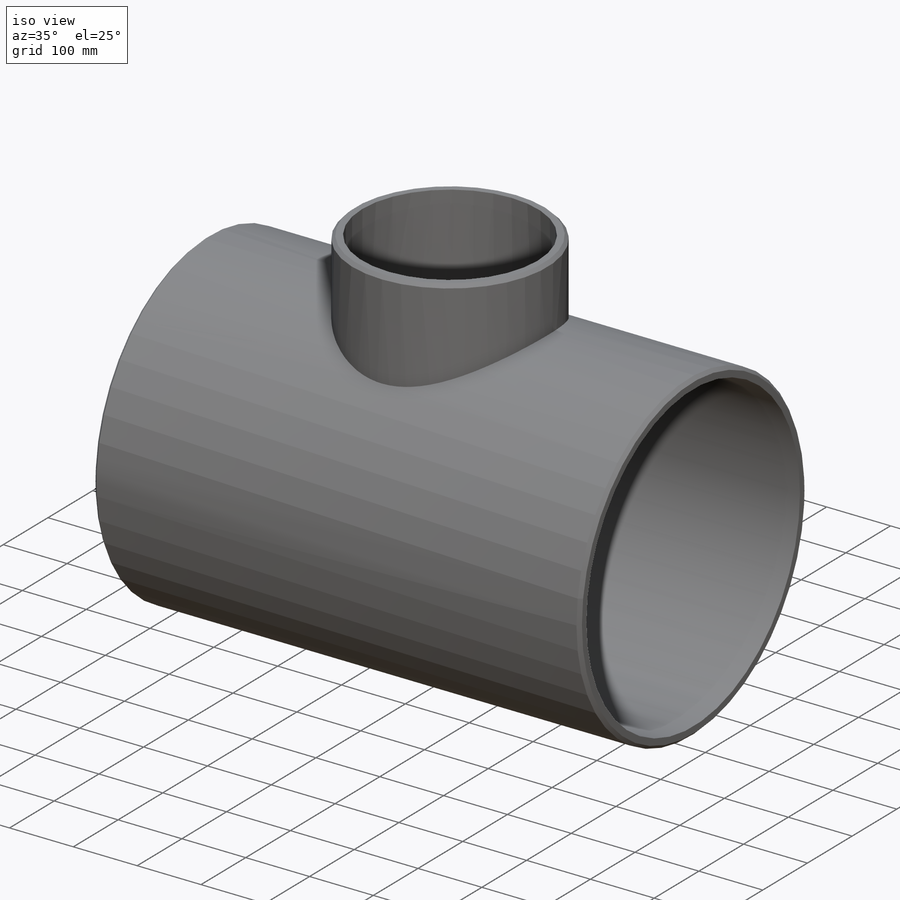
[diagram: iso view]
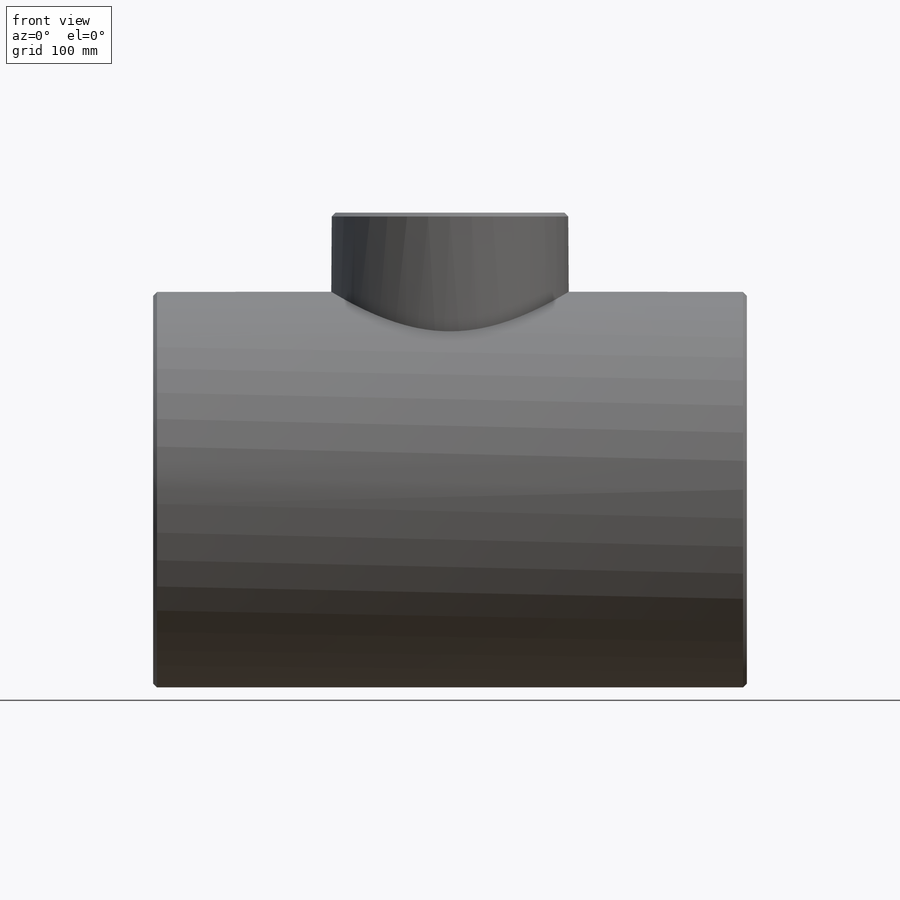
[diagram: front view]
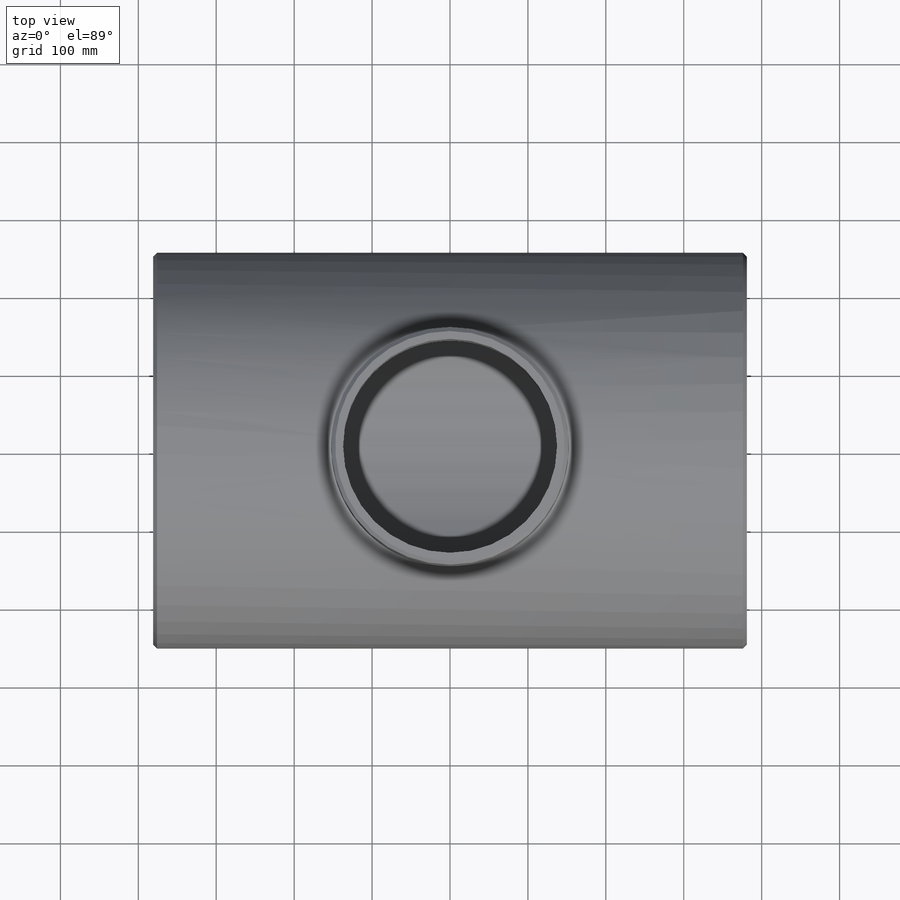
[diagram: top view]
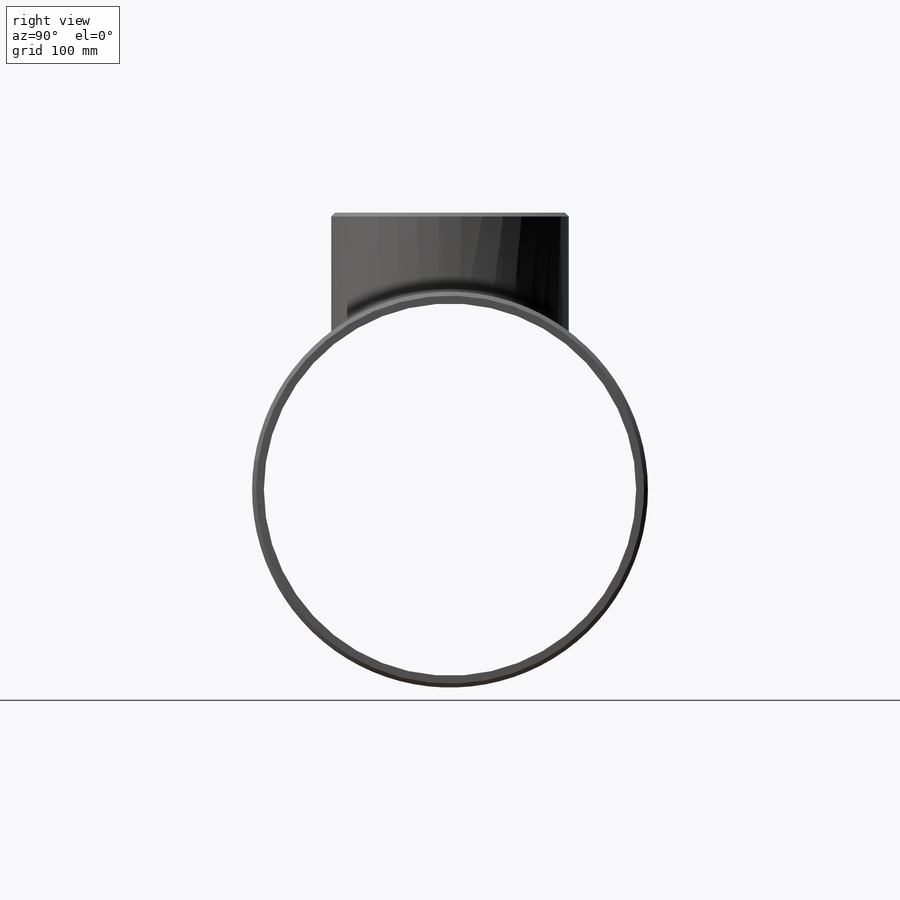
[diagram: right view]
SOLIDWORKS PART (.sldprt)
format: sldprt  version: not decoded by parser v0  size: 1,374,720 bytes
history: native  units: mm
features: plane x3, sketch x3, shell x3, chamfer x3, extrude x2, material x1, mirror x1 + 1 further entry (+12 scaffold rows collapsed)
feature tree (29):
  scaffold x12  (default folders/planes/origin — collapsed)
  material  "Material <not specified>"
  plane  "front"
  plane  "top"
  plane  "side"
  "Design Table"
  sketch  "RunRoute"  dims[Diameter=508.0mm]
  extrude  "RunExtrude"  Depth=381mm Center-to-EndRunC=381mm
  mirror  "RunExtrudeMirror"
  sketch  "OutletRoute"  dims[Diameter=304.8mm]
  extrude  "OutletExtrude"  Depth=355.6mm Center-to-EndOutletM=355.6mm
  shell  "TeeShell"  Thickness=15.0876mm WallThickness=15.0876mm
  chamfer  "TeeChamfer"  Distance=5.0292mm Angle=45deg ChamferDistance=5.0292mm ChamferAngle=45deg
  sketch  "Sketch1"  dims[Diameter=508.0mm StubLength=0.0mm]
  shell  "CPoint2"  [1 undecoded]
  chamfer  "Axis3"  Distance=304.8mm Diameter=304.8mm StubLength=0mm
  shell  "CPoint3"  [1 undecoded]
  chamfer  "Axis4"  Distance=508mm Diameter=508mm StubLength=0mm
decode coverage: 9 of 12 modeling features carry decoded parameters; 1 rows unclassified (native names shown)
note: 2 parameter values undecoded
note: suppression state not decoded; provenance and decode notes live in map.json
